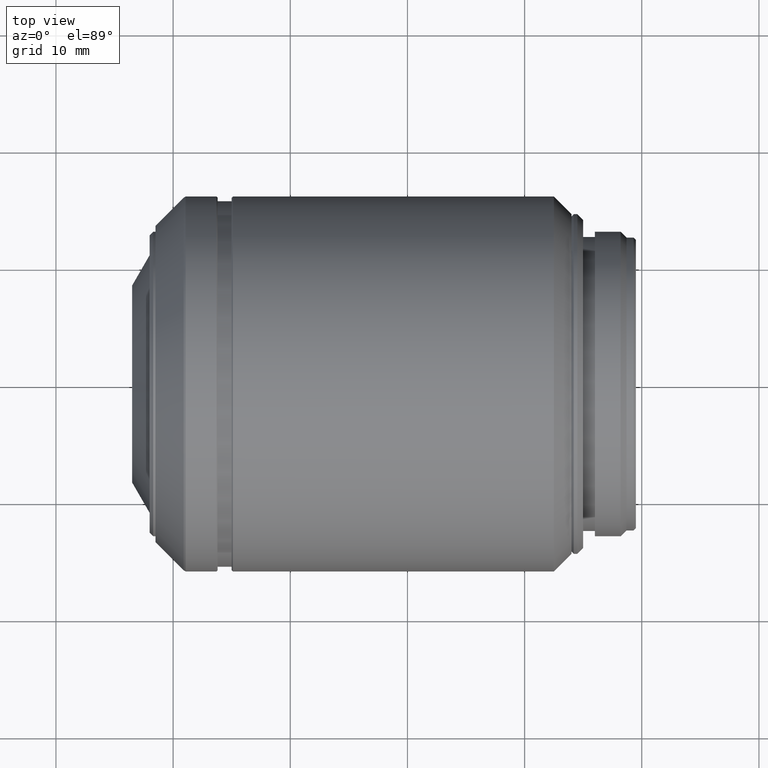
[diagram: clean part render]
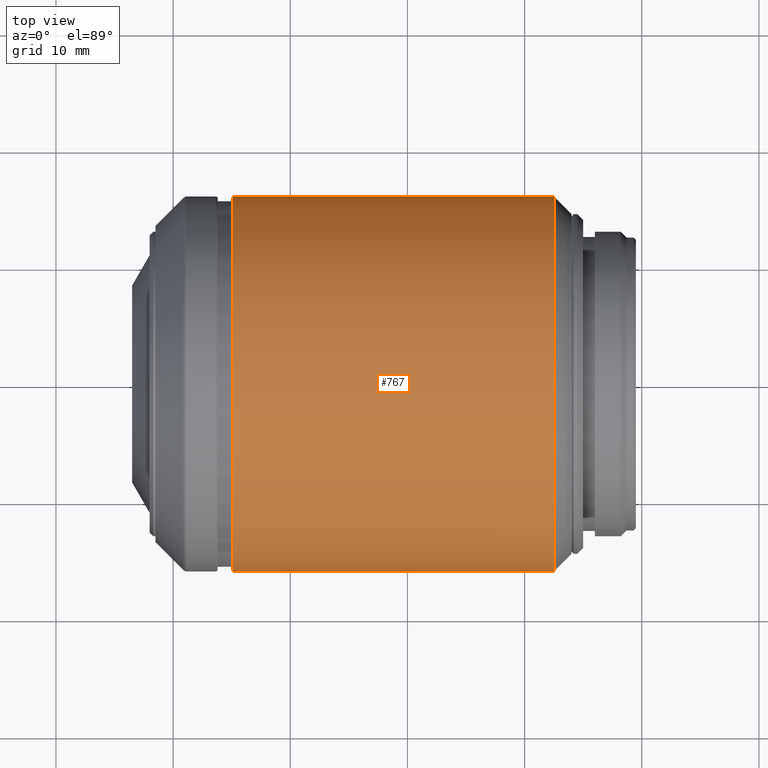
[diagram: same view with one face highlighted and labeled with its STEP entity id]
A machine part, top view. The second image highlights one B-rep face of the part: STEP entity #767.
In plain terms, the highlighted cylindrical surface (partial cylindrical patch) has radius 16 mm, axis along (1, 0, 0).
Its self-contained STEP definition (entity closure, byte-faithful):
#28 = LINE ( 'NONE', #493, #1467 ) ;
#48 = ORIENTED_EDGE ( 'NONE', *, *, #540, .T. ) ;
#196 = CARTESIAN_POINT ( 'NONE',  ( 26.25999999999999801, -16.00000000000000000, -1.959434878635769865E-15 ) ) ;
#266 = EDGE_CURVE ( 'NONE', #1405, #1027, #1367, .T. ) ;
#268 = VERTEX_POINT ( 'NONE', #840 ) ;
#280 = ORIENTED_EDGE ( 'NONE', *, *, #266, .F. ) ;
#359 = DIRECTION ( 'NONE',  ( 1.000000000000000000, 1.415423776414539960E-16, 0.000000000000000000 ) ) ;
#396 = CARTESIAN_POINT ( 'NONE',  ( 12.56000000000000050, 16.00000000000000000, -1.959434878635769865E-15 ) ) ;
#469 = DIRECTION ( 'NONE',  ( 1.084202172485504434E-16, -1.000000000000000000, 0.000000000000000000 ) ) ;
#493 = CARTESIAN_POINT ( 'NONE',  ( 12.56000000000000050, -16.00000000000000000, 0.000000000000000000 ) ) ;
#540 = EDGE_CURVE ( 'NONE', #268, #960, #1495, .T. ) ;
#562 = CARTESIAN_POINT ( 'NONE',  ( -1.139999999999999902, -16.00000000000000000, 0.000000000000000000 ) ) ;
#567 = DIRECTION ( 'NONE',  ( 1.000000000000000000, 1.415423776414539960E-16, 0.000000000000000000 ) ) ;
#597 = FACE_OUTER_BOUND ( 'NONE', #1241, .T. ) ;
#632 = DIRECTION ( 'NONE',  ( -2.168404344971008868E-16, 1.000000000000000000, 0.000000000000000000 ) ) ;
#683 = ORIENTED_EDGE ( 'NONE', *, *, #1452, .F. ) ;
#689 = DIRECTION ( 'NONE',  ( -1.355252715606880543E-16, 1.000000000000000000, 0.000000000000000000 ) ) ;
#703 = ORIENTED_EDGE ( 'NONE', *, *, #1255, .T. ) ;
#736 = CARTESIAN_POINT ( 'NONE',  ( 26.25999999999999801, 16.00000000000000000, 0.000000000000000000 ) ) ;
#767 = ADVANCED_FACE ( 'NONE', ( #597 ), #1069, .T. ) ;
#840 = CARTESIAN_POINT ( 'NONE',  ( -1.139999999999999902, 16.00000000000000000, -1.959434878635769865E-15 ) ) ;
#856 = DIRECTION ( 'NONE',  ( 1.000000000000000000, 1.415423776414539960E-16, 0.000000000000000000 ) ) ;
#884 = LINE ( 'NONE', #396, #1342 ) ;
#960 = VERTEX_POINT ( 'NONE', #562 ) ;
#979 = DIRECTION ( 'NONE',  ( 1.000000000000000000, 1.415423776414539960E-16, 0.000000000000000000 ) ) ;
#991 = CARTESIAN_POINT ( 'NONE',  ( 26.25999999999999801, -3.538559441036359760E-16, 0.000000000000000000 ) ) ;
#1015 = AXIS2_PLACEMENT_3D ( 'NONE', #1025, #567, #689 ) ;
#1025 = CARTESIAN_POINT ( 'NONE',  ( -1.139999999999999902, -4.232117091479479794E-15, 0.000000000000000000 ) ) ;
#1027 = VERTEX_POINT ( 'NONE', #196 ) ;
#1069 = CYLINDRICAL_SURFACE ( 'NONE', #1166, 16.00000000000000000 ) ;
#1166 = AXIS2_PLACEMENT_3D ( 'NONE', #1425, #1406, #469 ) ;
#1241 = EDGE_LOOP ( 'NONE', ( #703, #280, #683, #48 ) ) ;
#1255 = EDGE_CURVE ( 'NONE', #960, #1027, #28, .T. ) ;
#1293 = AXIS2_PLACEMENT_3D ( 'NONE', #991, #979, #632 ) ;
#1342 = VECTOR ( 'NONE', #856, 1000.000000000000000 ) ;
#1367 = CIRCLE ( 'NONE', #1293, 16.00000000000000000 ) ;
#1405 = VERTEX_POINT ( 'NONE', #736 ) ;
#1406 = DIRECTION ( 'NONE',  ( 1.000000000000000000, 1.415423776414539960E-16, 0.000000000000000000 ) ) ;
#1425 = CARTESIAN_POINT ( 'NONE',  ( 12.56000000000000050, -2.292986517791559882E-15, 0.000000000000000000 ) ) ;
#1452 = EDGE_CURVE ( 'NONE', #268, #1405, #884, .T. ) ;
#1467 = VECTOR ( 'NONE', #359, 1000.000000000000000 ) ;
#1495 = CIRCLE ( 'NONE', #1015, 16.00000000000000000 ) ;